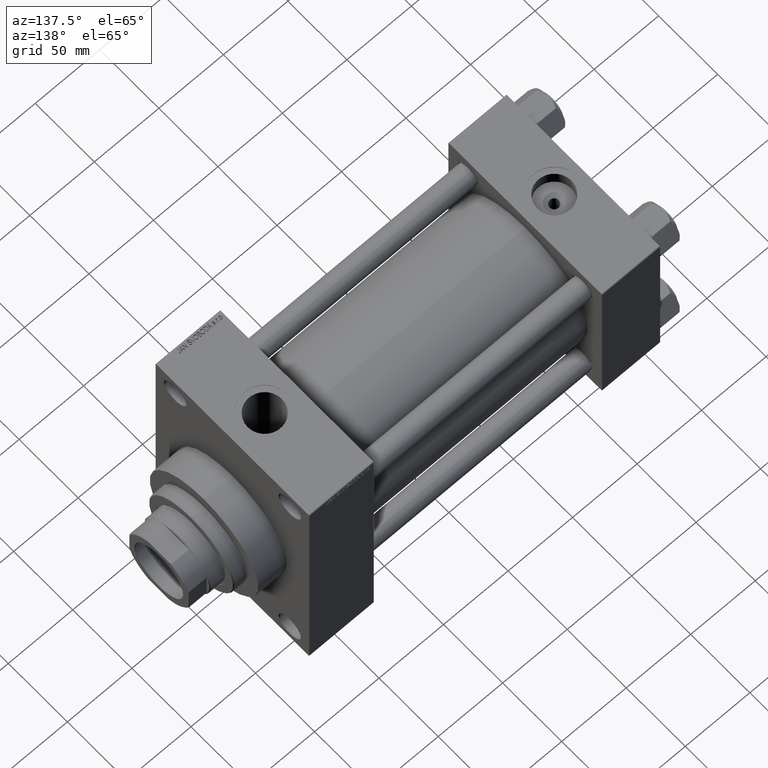
[diagram: clean part render]
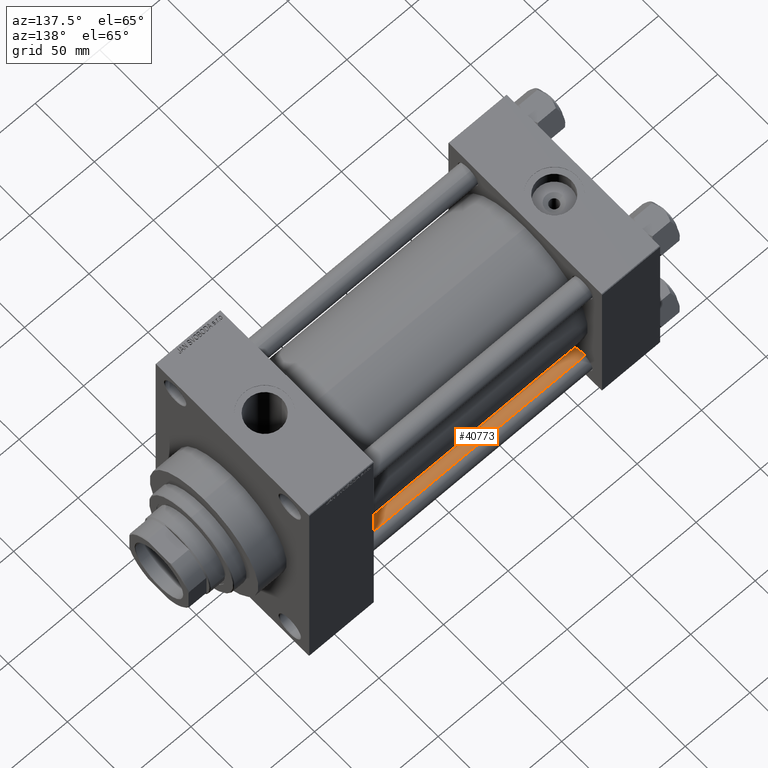
[diagram: same view with one face highlighted and labeled with its STEP entity id]
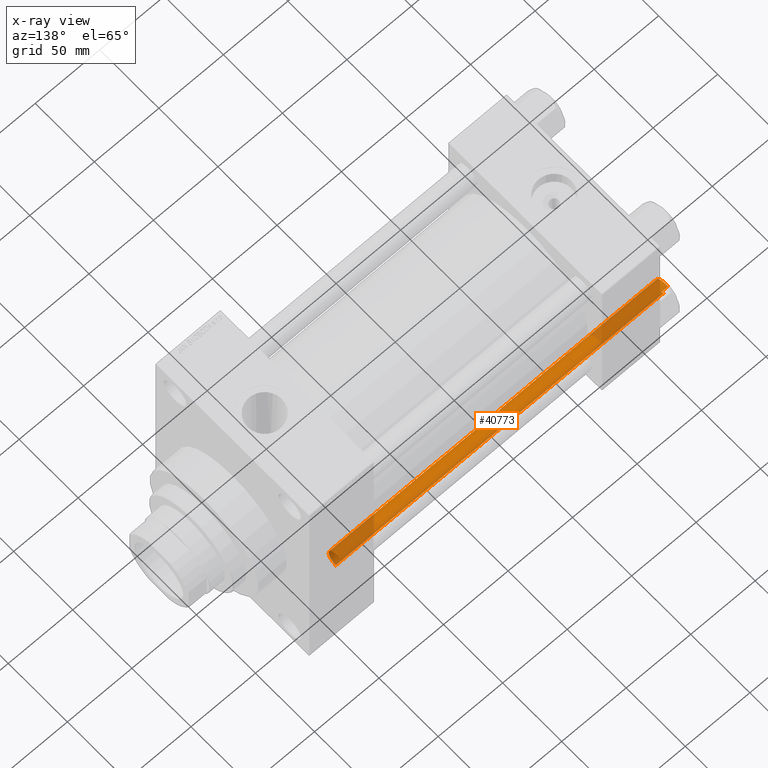
[diagram: x-ray of the same camera — body ghosted, the highlighted face saturated]
A machine part, auxiliary view. The second image highlights one B-rep face of the part: STEP entity #40773.
The next image is the same camera in x-ray: the body ghosted, the highlighted face saturated — about 32% of this face is hidden behind the body in this view.
In plain terms, the highlighted cylindrical surface (edge-blend (fillet) strip) has radius 8 mm, axis along (1, -0, 0).
Its self-contained STEP definition (entity closure, byte-faithful):
#617 = VECTOR ( 'NONE', #12456, 1000.000000000000000 ) ;
#1225 = VERTEX_POINT ( 'NONE', #2385 ) ;
#2385 = CARTESIAN_POINT ( 'NONE',  ( 8.000000000000000000, 9.797174393178825657E-16, 0.4999999999999449329 ) ) ;
#4433 = DIRECTION ( 'NONE',  ( -1.000000000000000000, 0.000000000000000000, 0.000000000000000000 ) ) ;
#6139 = AXIS2_PLACEMENT_3D ( 'NONE', #19855, #19612, #18882 ) ;
#6238 = EDGE_CURVE ( 'NONE', #44611, #1225, #31521, .T. ) ;
#7166 = AXIS2_PLACEMENT_3D ( 'NONE', #26615, #15037, #4433 ) ;
#9646 = CARTESIAN_POINT ( 'NONE',  ( 8.000000000000000000, 9.797174393178825657E-16, 254.5000000000000000 ) ) ;
#10639 = CARTESIAN_POINT ( 'NONE',  ( 8.000000000000000000, 9.797174393178825657E-16, 255.0000000000000000 ) ) ;
#10644 = ORIENTED_EDGE ( 'NONE', *, *, #26965, .T. ) ;
#12456 = DIRECTION ( 'NONE',  ( -0.000000000000000000, -0.000000000000000000, -1.000000000000000000 ) ) ;
#12815 = CARTESIAN_POINT ( 'NONE',  ( 0.000000000000000000, 0.000000000000000000, 254.5000000000000000 ) ) ;
#14125 = ORIENTED_EDGE ( 'NONE', *, *, #6238, .T. ) ;
#14707 = DIRECTION ( 'NONE',  ( -0.000000000000000000, -0.000000000000000000, -1.000000000000000000 ) ) ;
#15037 = DIRECTION ( 'NONE',  ( -0.000000000000000000, -0.000000000000000000, -1.000000000000000000 ) ) ;
#17838 = AXIS2_PLACEMENT_3D ( 'NONE', #12815, #20047, #30646 ) ;
#18126 = VERTEX_POINT ( 'NONE', #9646 ) ;
#18315 = LINE ( 'NONE', #10639, #42212 ) ;
#18372 = ORIENTED_EDGE ( 'NONE', *, *, #25529, .F. ) ;
#18414 = CYLINDRICAL_SURFACE ( 'NONE', #7166, 8.000000000000000000 ) ;
#18882 = DIRECTION ( 'NONE',  ( 1.000000000000000000, 0.000000000000000000, 0.000000000000000000 ) ) ;
#19138 = FACE_OUTER_BOUND ( 'NONE', #37824, .T. ) ;
#19612 = DIRECTION ( 'NONE',  ( -0.000000000000000000, -0.000000000000000000, 1.000000000000000000 ) ) ;
#19855 = CARTESIAN_POINT ( 'NONE',  ( 0.000000000000000000, 0.000000000000000000, 0.4999999999999449329 ) ) ;
#20047 = DIRECTION ( 'NONE',  ( 0.000000000000000000, 0.000000000000000000, -1.000000000000000000 ) ) ;
#22013 = CARTESIAN_POINT ( 'NONE',  ( -8.000000000000000000, 0.000000000000000000, 0.4999999999999449329 ) ) ;
#25529 = EDGE_CURVE ( 'NONE', #18126, #1225, #18315, .T. ) ;
#26462 = VERTEX_POINT ( 'NONE', #40282 ) ;
#26615 = CARTESIAN_POINT ( 'NONE',  ( 0.000000000000000000, 0.000000000000000000, 255.0000000000000000 ) ) ;
#26965 = EDGE_CURVE ( 'NONE', #26462, #44611, #44120, .T. ) ;
#28242 = ORIENTED_EDGE ( 'NONE', *, *, #37468, .T. ) ;
#30646 = DIRECTION ( 'NONE',  ( 1.000000000000000000, 0.000000000000000000, 0.000000000000000000 ) ) ;
#31521 = CIRCLE ( 'NONE', #6139, 8.000000000000000000 ) ;
#33216 = CIRCLE ( 'NONE', #17838, 8.000000000000000000 ) ;
#37468 = EDGE_CURVE ( 'NONE', #18126, #26462, #33216, .T. ) ;
#37824 = EDGE_LOOP ( 'NONE', ( #18372, #28242, #10644, #14125 ) ) ;
#40282 = CARTESIAN_POINT ( 'NONE',  ( -8.000000000000000000, 0.000000000000000000, 254.5000000000000000 ) ) ;
#40773 = ADVANCED_FACE ( 'NONE', ( #19138 ), #18414, .T. ) ;
#42212 = VECTOR ( 'NONE', #14707, 1000.000000000000000 ) ;
#44120 = LINE ( 'NONE', #45515, #617 ) ;
#44611 = VERTEX_POINT ( 'NONE', #22013 ) ;
#45515 = CARTESIAN_POINT ( 'NONE',  ( -8.000000000000000000, 0.000000000000000000, 255.0000000000000000 ) ) ;